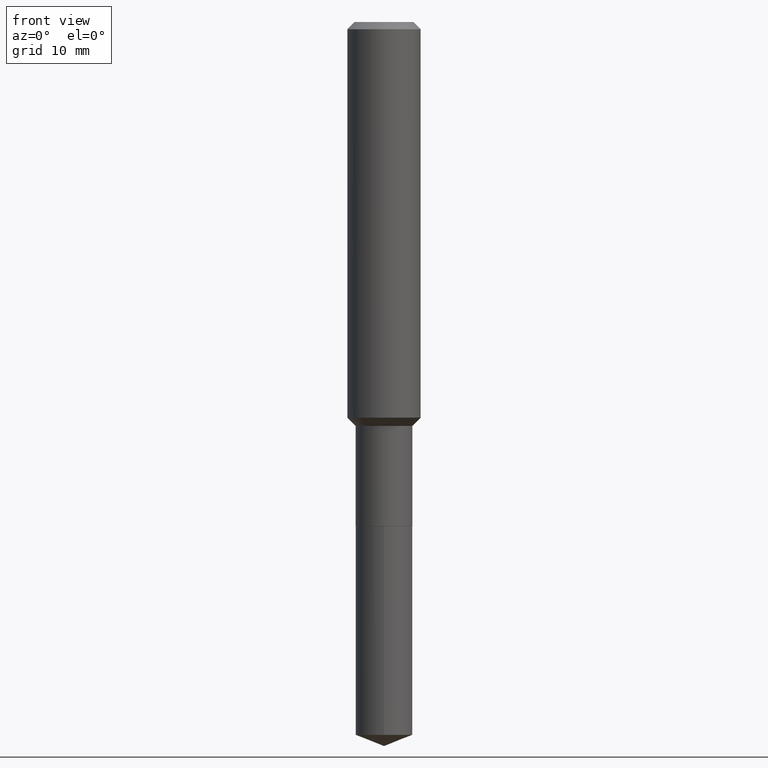
[diagram: clean part render]
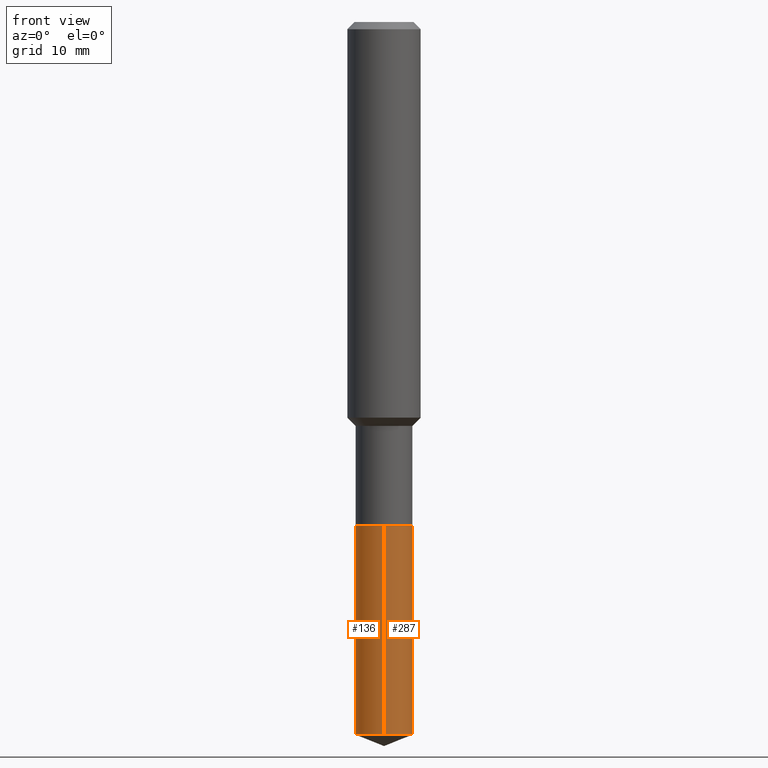
[diagram: same view with one multi-face feature highlighted, each face labeled with its STEP entity id]
A machine part, front view. The highlighted faces form ONE feature: a constant-radius fillet chain: 2 tangent blend faces with common blend radius 3.1001 mm. The faces share edges in the B-rep.
Their STEP definitions:
[1] entity #287 (Cylinder):
#13 = EDGE_CURVE ( 'NONE', #233, #73, #265, .T. ) ;
#23 = DIRECTION ( 'NONE',  ( -2.445321399674212677E-29, 3.491692433356646244E-15, 1.000000000000000000 ) ) ;
#34 = VERTEX_POINT ( 'NONE', #114 ) ;
#47 = VECTOR ( 'NONE', #152, 39.37007874015748143 ) ;
#49 = CARTESIAN_POINT ( 'NONE',  ( 5.295173606032675561E-29, -7.560104542997063911E-15, -2.165299999999999780 ) ) ;
#52 = DIRECTION ( 'NONE',  ( -6.982962677686265922E-15, -1.000000000000000000, 4.476604659834925490E-15 ) ) ;
#62 = AXIS2_PLACEMENT_3D ( 'NONE', #49, #464, #52 ) ;
#65 = VECTOR ( 'NONE', #303, 39.37007874015748143 ) ;
#67 = DIRECTION ( 'NONE',  ( -2.445321399674212677E-29, 3.491692433356646244E-15, 1.000000000000000000 ) ) ;
#73 = VERTEX_POINT ( 'NONE', #359 ) ;
#81 = ORIENTED_EDGE ( 'NONE', *, *, #378, .F. ) ;
#114 = CARTESIAN_POINT ( 'NONE',  ( -8.522705948115558556E-16, -0.1220500000000075691, -2.165299999999999336 ) ) ;
#116 = VERTEX_POINT ( 'NONE', #162 ) ;
#132 = AXIS2_PLACEMENT_3D ( 'NONE', #482, #23, #139 ) ;
#134 = LINE ( 'NONE', #476, #47 ) ;
#139 = DIRECTION ( 'NONE',  ( -6.982962677686265922E-15, -1.000000000000000000, 4.476604659834925490E-15 ) ) ;
#143 = CARTESIAN_POINT ( 'NONE',  ( 8.672174089952771606E-16, 0.1220499999999893059, -3.062123226451197500 ) ) ;
#144 = EDGE_CURVE ( 'NONE', #34, #73, #300, .T. ) ;
#145 = CARTESIAN_POINT ( 'NONE',  ( 8.672174089952550725E-16, 0.1220499999999924423, -2.165300000000000669 ) ) ;
#151 = CIRCLE ( 'NONE', #132, 0.1220500000000000057 ) ;
#152 = DIRECTION ( 'NONE',  ( -2.445321399674212397E-29, 3.491692433356646639E-15, 1.000000000000000000 ) ) ;
#162 = CARTESIAN_POINT ( 'NONE',  ( -8.522705948115337675E-16, -0.1220500000000106916, -3.062123226451196611 ) ) ;
#192 = ORIENTED_EDGE ( 'NONE', *, *, #284, .T. ) ;
#233 = VERTEX_POINT ( 'NONE', #143 ) ;
#252 = FACE_OUTER_BOUND ( 'NONE', #459, .T. ) ;
#265 = LINE ( 'NONE', #145, #65 ) ;
#284 = EDGE_CURVE ( 'NONE', #116, #233, #151, .T. ) ;
#287 = ADVANCED_FACE ( 'NONE', ( #252 ), #437, .T. ) ;
#289 = DIRECTION ( 'NONE',  ( -6.982962677686265922E-15, -1.000000000000000000, 4.476604659834925490E-15 ) ) ;
#300 = CIRCLE ( 'NONE', #62, 0.1220500000000000057 ) ;
#303 = DIRECTION ( 'NONE',  ( -2.445321399674212397E-29, 3.491692433356646639E-15, 1.000000000000000000 ) ) ;
#344 = ORIENTED_EDGE ( 'NONE', *, *, #13, .T. ) ;
#359 = CARTESIAN_POINT ( 'NONE',  ( 8.672174089952769634E-16, 0.1220499999999924146, -2.165300000000000669 ) ) ;
#373 = CARTESIAN_POINT ( 'NONE',  ( 5.295173606032675561E-29, -7.560104542997063911E-15, -2.165299999999999780 ) ) ;
#378 = EDGE_CURVE ( 'NONE', #116, #34, #134, .T. ) ;
#388 = ORIENTED_EDGE ( 'NONE', *, *, #144, .F. ) ;
#393 = AXIS2_PLACEMENT_3D ( 'NONE', #373, #67, #289 ) ;
#437 = CYLINDRICAL_SURFACE ( 'NONE', #393, 0.1220500000000000057 ) ;
#459 = EDGE_LOOP ( 'NONE', ( #192, #344, #388, #81 ) ) ;
#464 = DIRECTION ( 'NONE',  ( -2.445321399674212677E-29, 3.491692433356646244E-15, 1.000000000000000000 ) ) ;
#476 = CARTESIAN_POINT ( 'NONE',  ( -8.522705948115558556E-16, -0.1220500000000075691, -2.165299999999999336 ) ) ;
#482 = CARTESIAN_POINT ( 'NONE',  ( 7.488194633398660145E-29, -1.069153541685520385E-14, -3.062123226451197056 ) ) ;
[2] entity #136 (Cylinder):
#11 = DIRECTION ( 'NONE',  ( -2.445321399674212677E-29, 3.491692433356646244E-15, 1.000000000000000000 ) ) ;
#13 = EDGE_CURVE ( 'NONE', #233, #73, #265, .T. ) ;
#33 = AXIS2_PLACEMENT_3D ( 'NONE', #120, #11, #125 ) ;
#34 = VERTEX_POINT ( 'NONE', #114 ) ;
#47 = VECTOR ( 'NONE', #152, 39.37007874015748143 ) ;
#50 = ORIENTED_EDGE ( 'NONE', *, *, #260, .F. ) ;
#65 = VECTOR ( 'NONE', #303, 39.37007874015748143 ) ;
#66 = CIRCLE ( 'NONE', #33, 0.1220500000000000057 ) ;
#73 = VERTEX_POINT ( 'NONE', #359 ) ;
#114 = CARTESIAN_POINT ( 'NONE',  ( -8.522705948115558556E-16, -0.1220500000000075691, -2.165299999999999336 ) ) ;
#116 = VERTEX_POINT ( 'NONE', #162 ) ;
#120 = CARTESIAN_POINT ( 'NONE',  ( 5.295173606032675561E-29, -7.560104542997063911E-15, -2.165299999999999780 ) ) ;
#121 = AXIS2_PLACEMENT_3D ( 'NONE', #432, #239, #130 ) ;
#125 = DIRECTION ( 'NONE',  ( -6.982962677686265922E-15, -1.000000000000000000, 4.476604659834925490E-15 ) ) ;
#129 = CYLINDRICAL_SURFACE ( 'NONE', #121, 0.1220500000000000057 ) ;
#130 = DIRECTION ( 'NONE',  ( -6.982962677686265922E-15, -1.000000000000000000, 4.476604659834925490E-15 ) ) ;
#134 = LINE ( 'NONE', #476, #47 ) ;
#136 = ADVANCED_FACE ( 'NONE', ( #472 ), #129, .T. ) ;
#143 = CARTESIAN_POINT ( 'NONE',  ( 8.672174089952771606E-16, 0.1220499999999893059, -3.062123226451197500 ) ) ;
#145 = CARTESIAN_POINT ( 'NONE',  ( 8.672174089952550725E-16, 0.1220499999999924423, -2.165300000000000669 ) ) ;
#150 = EDGE_LOOP ( 'NONE', ( #363, #461, #226, #50 ) ) ;
#152 = DIRECTION ( 'NONE',  ( -2.445321399674212397E-29, 3.491692433356646639E-15, 1.000000000000000000 ) ) ;
#162 = CARTESIAN_POINT ( 'NONE',  ( -8.522705948115337675E-16, -0.1220500000000106916, -3.062123226451196611 ) ) ;
#226 = ORIENTED_EDGE ( 'NONE', *, *, #378, .T. ) ;
#233 = VERTEX_POINT ( 'NONE', #143 ) ;
#239 = DIRECTION ( 'NONE',  ( -2.445321399674212677E-29, 3.491692433356646244E-15, 1.000000000000000000 ) ) ;
#242 = EDGE_CURVE ( 'NONE', #233, #116, #297, .T. ) ;
#260 = EDGE_CURVE ( 'NONE', #73, #34, #66, .T. ) ;
#265 = LINE ( 'NONE', #145, #65 ) ;
#291 = DIRECTION ( 'NONE',  ( -6.982962677686265922E-15, -1.000000000000000000, 4.476604659834925490E-15 ) ) ;
#297 = CIRCLE ( 'NONE', #391, 0.1220500000000000057 ) ;
#303 = DIRECTION ( 'NONE',  ( -2.445321399674212397E-29, 3.491692433356646639E-15, 1.000000000000000000 ) ) ;
#359 = CARTESIAN_POINT ( 'NONE',  ( 8.672174089952769634E-16, 0.1220499999999924146, -2.165300000000000669 ) ) ;
#363 = ORIENTED_EDGE ( 'NONE', *, *, #13, .F. ) ;
#378 = EDGE_CURVE ( 'NONE', #116, #34, #134, .T. ) ;
#391 = AXIS2_PLACEMENT_3D ( 'NONE', #401, #483, #291 ) ;
#401 = CARTESIAN_POINT ( 'NONE',  ( 7.488194633398660145E-29, -1.069153541685520385E-14, -3.062123226451197056 ) ) ;
#432 = CARTESIAN_POINT ( 'NONE',  ( 5.295173606032675561E-29, -7.560104542997063911E-15, -2.165299999999999780 ) ) ;
#461 = ORIENTED_EDGE ( 'NONE', *, *, #242, .T. ) ;
#472 = FACE_OUTER_BOUND ( 'NONE', #150, .T. ) ;
#476 = CARTESIAN_POINT ( 'NONE',  ( -8.522705948115558556E-16, -0.1220500000000075691, -2.165299999999999336 ) ) ;
#483 = DIRECTION ( 'NONE',  ( -2.445321399674212677E-29, 3.491692433356646244E-15, 1.000000000000000000 ) ) ;